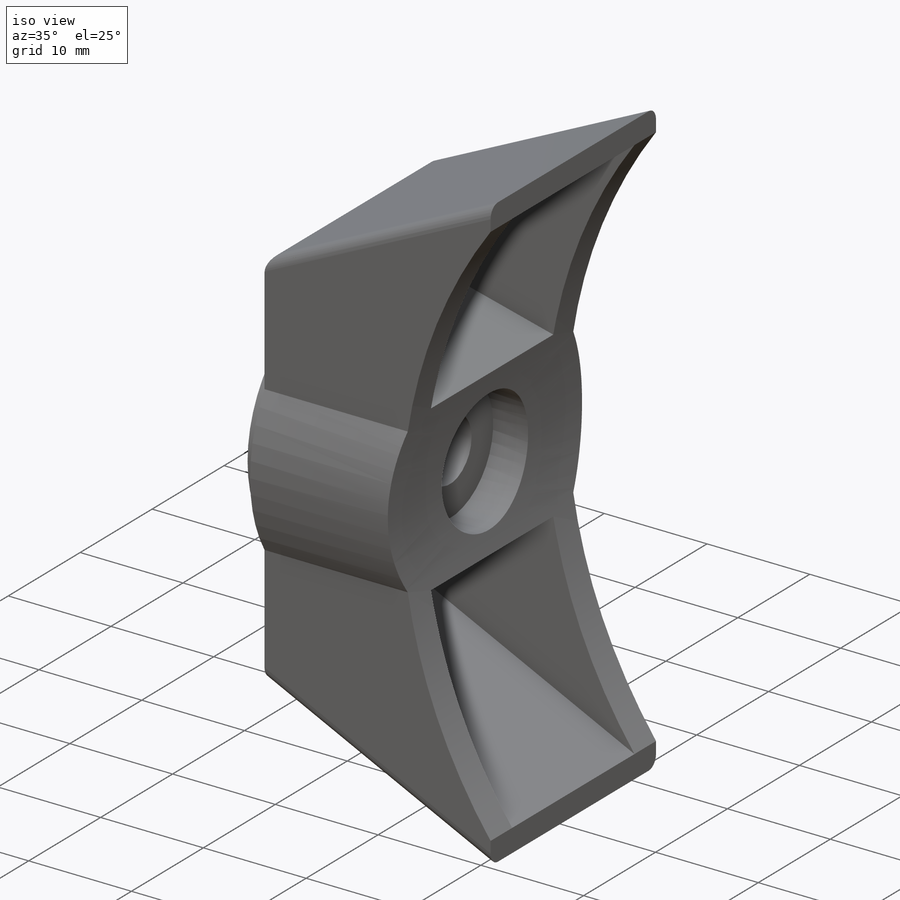
[diagram: iso view]
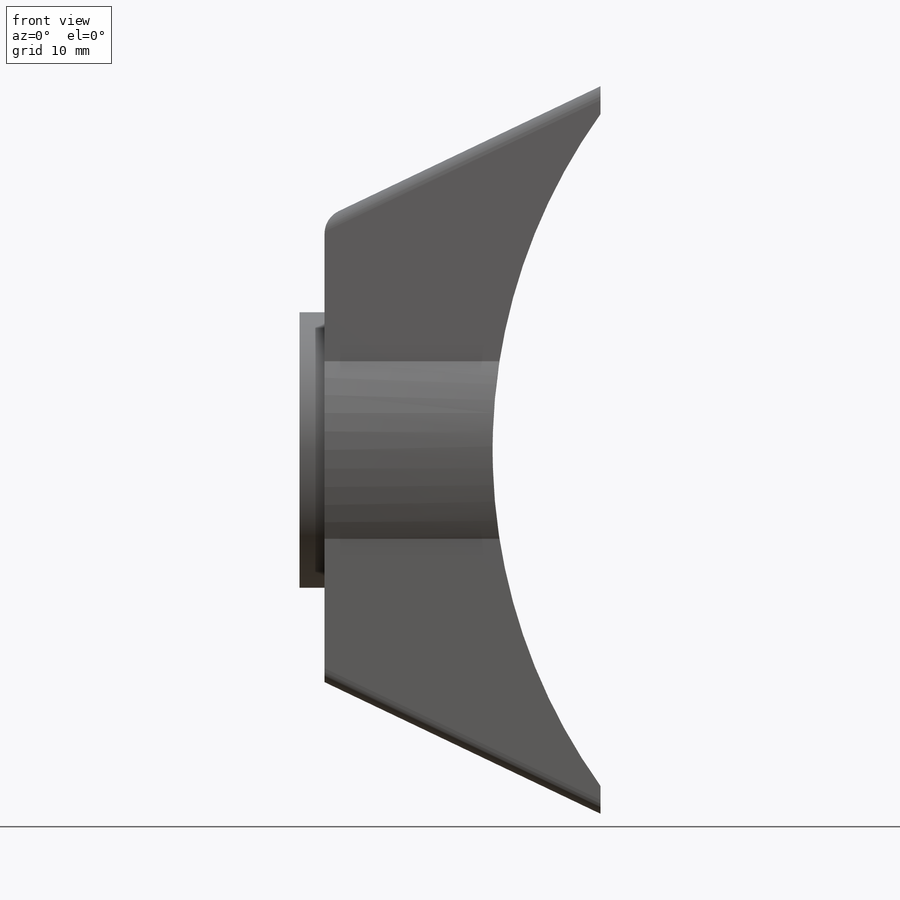
[diagram: front view]
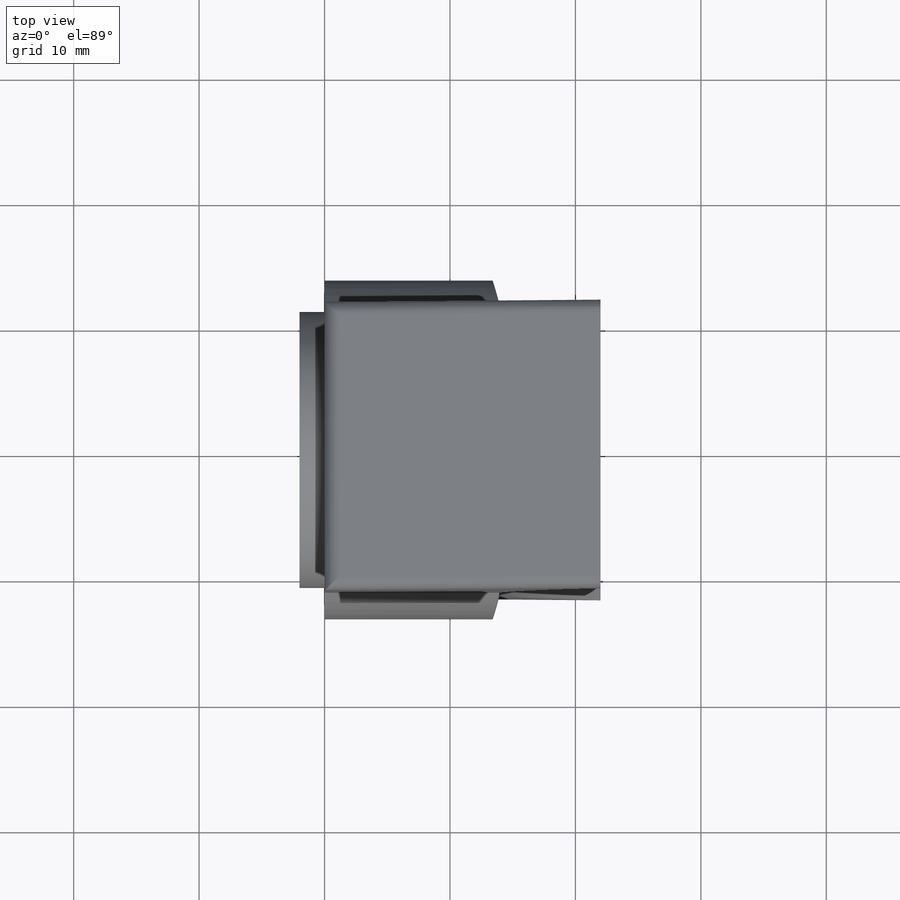
[diagram: top view]
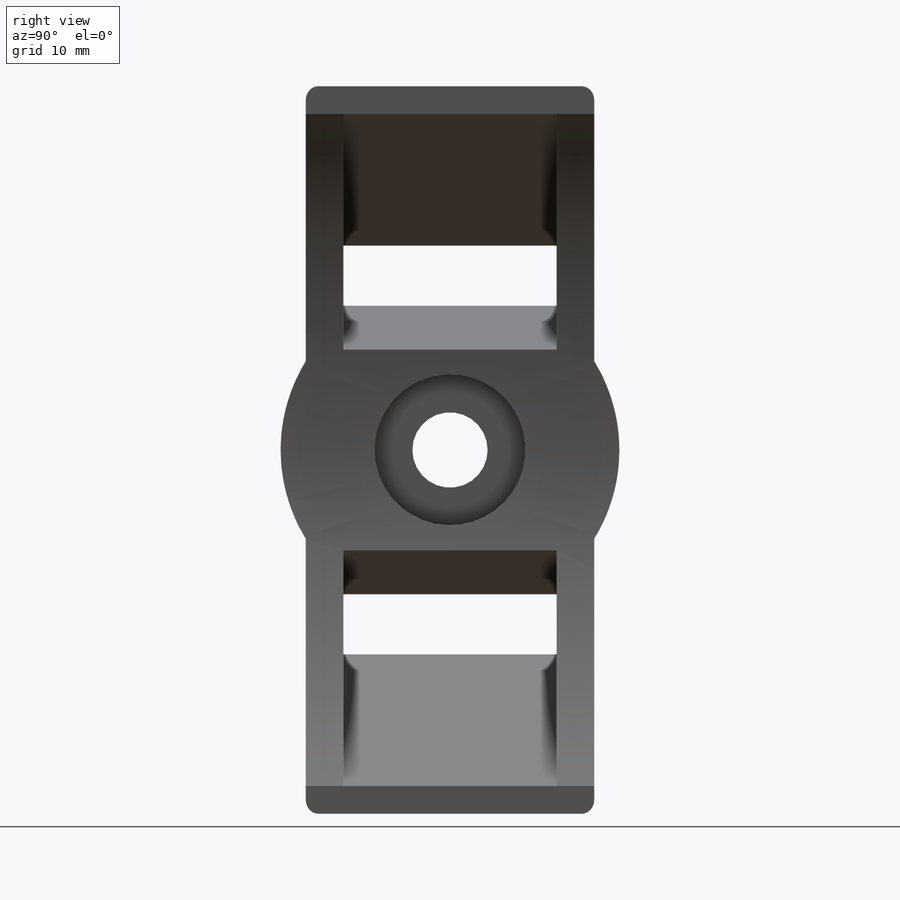
[diagram: right view]
SOLIDWORKS PART (.sldprt)
format: sldprt  version: not decoded by parser v0  size: 228,864 bytes
history: native  units: mm
features: sketch x7, extrude x4, plane x3, fillet x3, cut_extrude x2, material x1, cut_revolve x1 + 2 further entries (+7 scaffold rows collapsed)
feature tree (30):
  "Annotations"  RD1=58mm RD3=6mm RD4=21mm RD2=3mm
  scaffold x7  (default folders/planes/origin — collapsed)
  material  "Matériau <non spécifié>"
  "Corps de surface"
  plane  "face"
  plane  "dessus"
  plane  "coté"
  sketch  "Esquisse1"  dims[c1.D5=46.0mm c1.D1=29.0mm c1.D2=22.0mm c1.D3=50.575mm c2.D3=25.5deg c2.D4=2.0mm c3.D3=~24.374428mm c4.D3=25.5deg]
  extrude  "Base-Extrusion"  Depth=23mm
  sketch  "Esquisse2"  dims[D1=8.0mm D2=11.5mm]
  cut_extrude  "Enlèv. mat.-Extru.1"  Depth=17mm
  sketch  "Esquisse3"  dims[D1=8.0mm D2=11.5mm]
  cut_extrude  "Enlèv. mat.-Extru.2"  Depth=17mm
  sketch  "Esquisse4"  dims[D1=22.0mm]
  extrude  "Boss.-Extru.1"  Depth=2mm
  sketch  "Esquisse6"  dims[D2=3.0mm D3=6.0mm D4=12.0mm D5=2.0mm D1=0.0mm]
  cut_revolve  "Enlèvement de matière-Révolution1"  Angle=360deg
  fillet  "Congé1"  Radius=2mm
  fillet  "Congé4"  Radius=1mm
  fillet  "Congé5"  Radius=1mm
  sketch  "Esquisse7"  dims[D1=27.0mm D2=0.0mm D3=0.0mm]
  extrude  "Boss.-Extru.3"  [1 undecoded]
  sketch  "Esq_WRNL_Compact001"
  extrude  "BEx_WRNL_Compact001"  Depth=14.5mm
decode coverage: 15 of 17 modeling features carry decoded parameters; 2 rows unclassified (native names shown)
note: ~ marks probable driven/reference dimensions
note: 1 parameter value undecoded
note: suppression state not decoded; provenance and decode notes live in map.json
